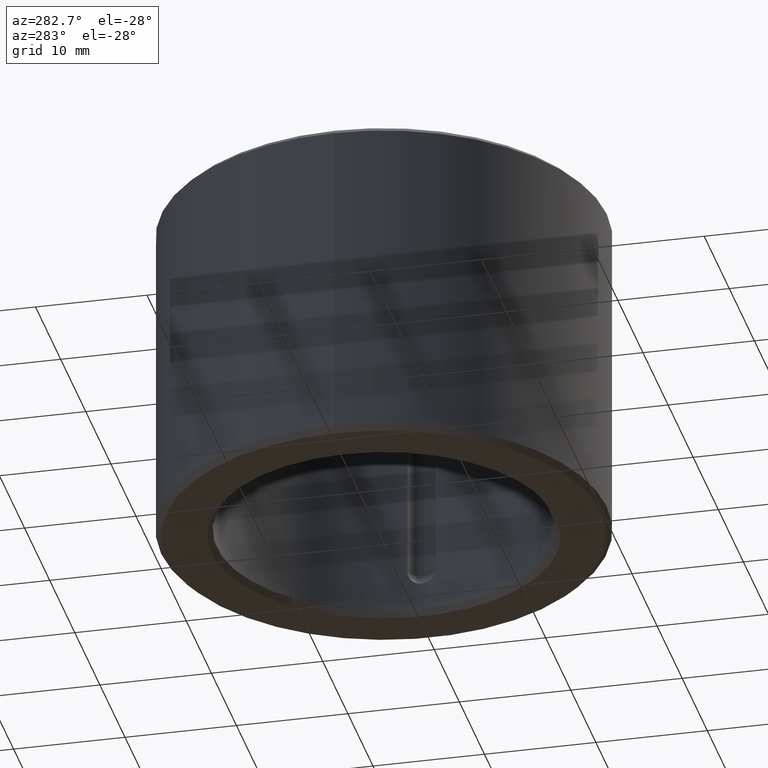
[diagram: clean part render]
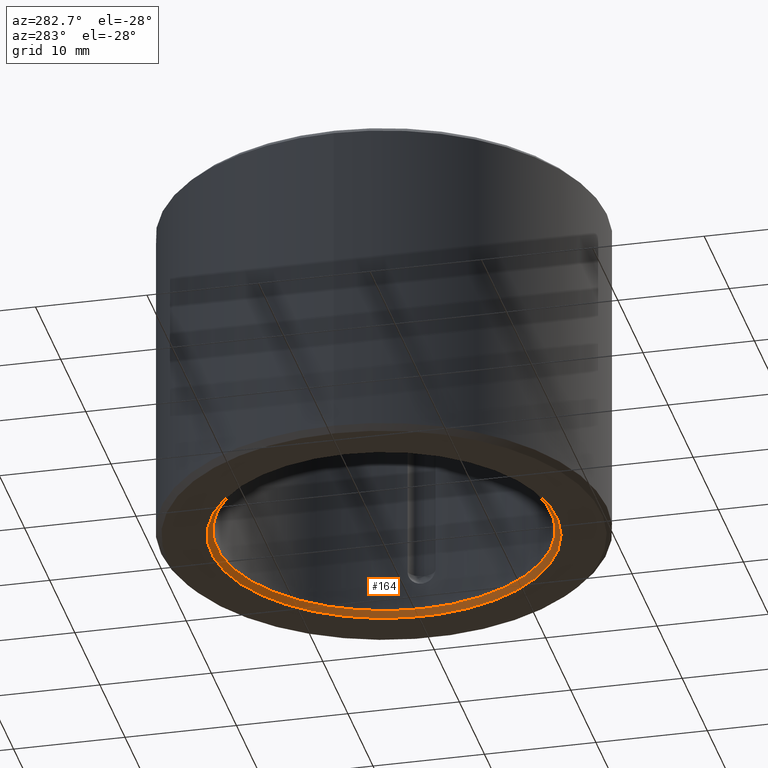
[diagram: same view with one face highlighted and labeled with its STEP entity id]
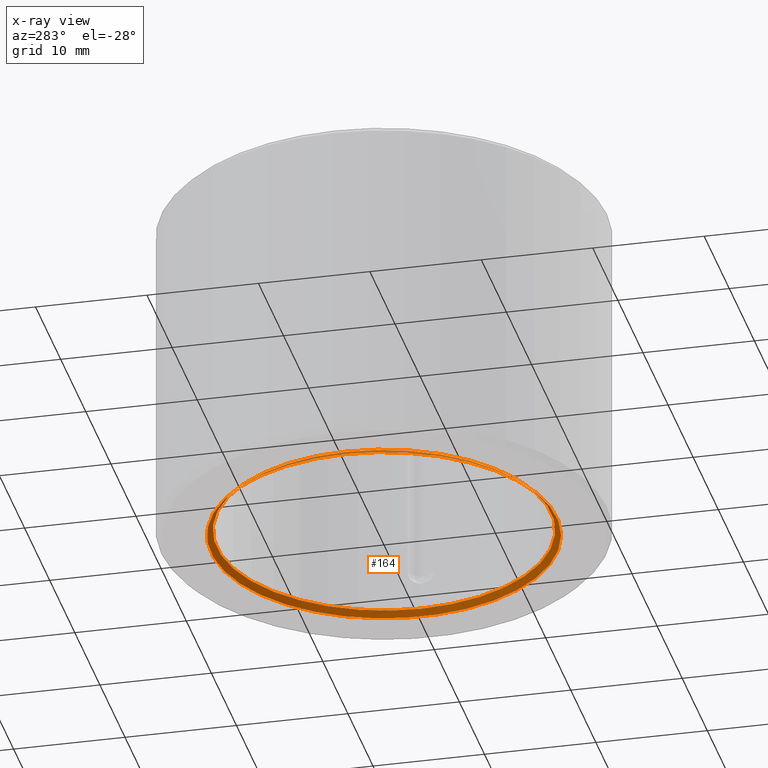
[diagram: x-ray of the same camera — body ghosted, the highlighted face saturated]
A machine part, auxiliary view. The second image highlights one B-rep face of the part: STEP entity #164.
The next image is the same camera in x-ray: the body ghosted, the highlighted face saturated — about 0% of this face is hidden behind the body in this view.
In plain terms, the highlighted conical surface has half-angle 45 deg.
Its self-contained STEP definition (entity closure, byte-faithful):
#164=ADVANCED_FACE('',(#198,#199),#200,.F.);
#198=FACE_OUTER_BOUND('',#3330,.T.);
#199=FACE_BOUND('',#3331,.T.);
#200=CONICAL_SURFACE('',#3332,0.015,0.785398163397446);
#3330=EDGE_LOOP('',(#6495));
#3331=EDGE_LOOP('',(#6496));
#3332=AXIS2_PLACEMENT_3D('',#6497,#6498,#6499);
#6495=ORIENTED_EDGE('',*,*,#6523,.T.);
#6496=ORIENTED_EDGE('',*,*,#6515,.F.);
#6497=CARTESIAN_POINT('',(0.0,0.0,0.0005));
#6498=DIRECTION('',(0.0,-6.12323399573677E-017,-1.0));
#6499=DIRECTION('',(0.0,1.0,-6.12323399573677E-017));
#6515=EDGE_CURVE('',#6543,#6543,#6544,.T.);
#6523=EDGE_CURVE('',#6558,#6558,#6559,.T.);
#6543=VERTEX_POINT('',#6726);
#6544=CIRCLE('',#6727,0.015);
#6558=VERTEX_POINT('',#6820);
#6559=CIRCLE('',#6821,0.0155);
#6726=CARTESIAN_POINT('',(0.0,0.015,0.0005));
#6727=AXIS2_PLACEMENT_3D('',#6838,#6839,#6840);
#6820=CARTESIAN_POINT('',(0.0,0.0155,-2.683824745316E-018));
#6821=AXIS2_PLACEMENT_3D('',#6859,#6860,#6861);
#6838=CARTESIAN_POINT('',(0.0,0.0,0.0005));
#6839=DIRECTION('',(0.0,-6.12323399573677E-017,-1.0));
#6840=DIRECTION('',(0.0,1.0,-6.12323399573677E-017));
#6859=CARTESIAN_POINT('',(0.0,0.0,-1.73472347597681E-018));
#6860=DIRECTION('',(0.0,-6.12323399573677E-017,-1.0));
#6861=DIRECTION('',(0.0,1.0,-6.12323399573677E-017));